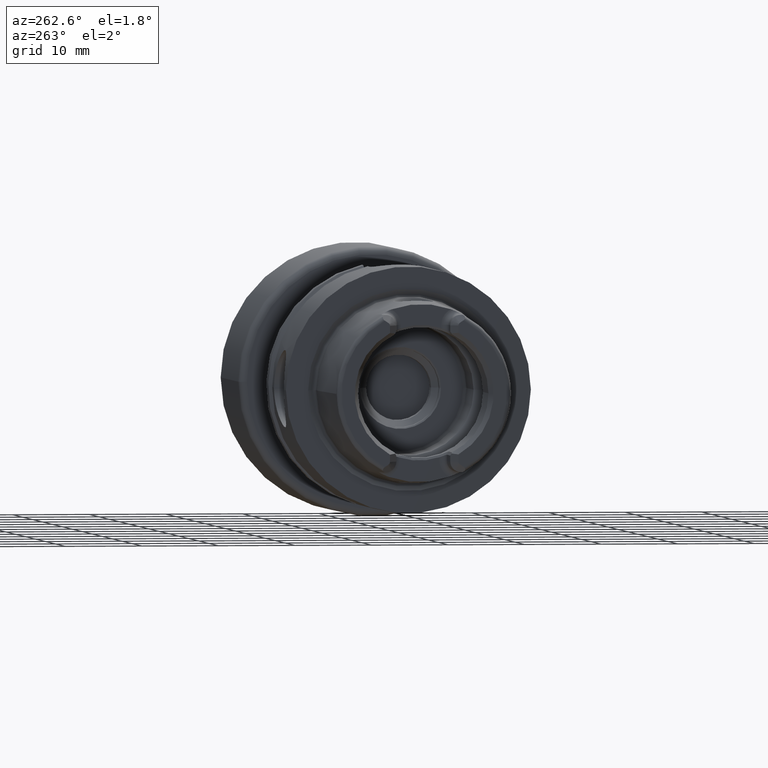
[diagram: clean part render]
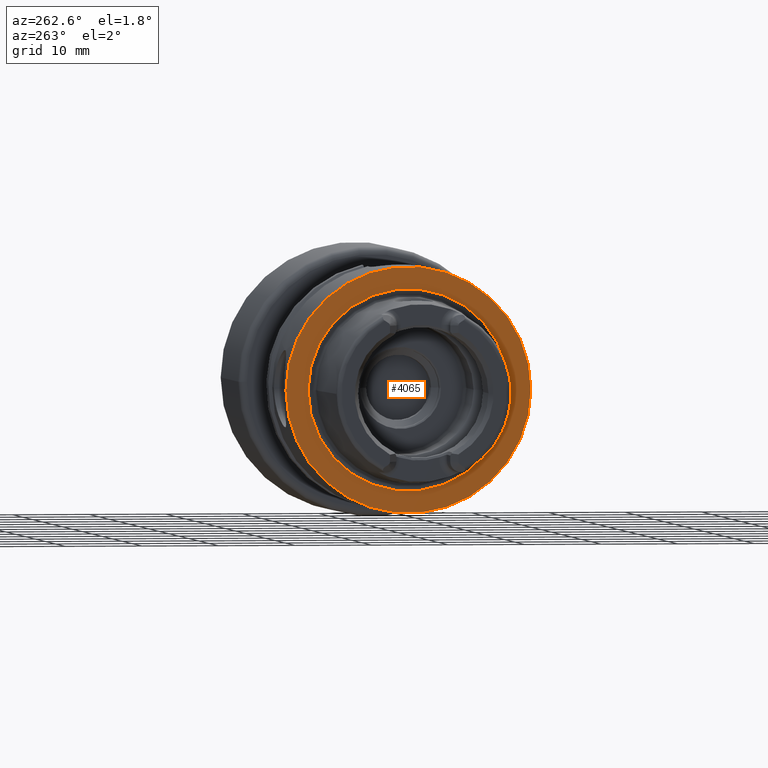
[diagram: same view with one face highlighted and labeled with its STEP entity id]
A machine part, auxiliary view. The second image highlights one B-rep face of the part: STEP entity #4065.
In plain terms, the highlighted planar face has unit normal (1, 0, 0).
Its self-contained STEP definition (entity closure, byte-faithful):
#652=CARTESIAN_POINT('',(0.E0,0.E0,0.E0));
#653=DIRECTION('',(1.E0,0.E0,0.E0));
#654=DIRECTION('',(0.E0,1.E0,0.E0));
#655=AXIS2_PLACEMENT_3D('',#652,#653,#654);
#657=CARTESIAN_POINT('',(0.E0,0.E0,0.E0));
#658=DIRECTION('',(-1.E0,0.E0,0.E0));
#659=DIRECTION('',(0.E0,1.E0,0.E0));
#660=AXIS2_PLACEMENT_3D('',#657,#658,#659);
#662=CARTESIAN_POINT('',(0.E0,0.E0,0.E0));
#663=DIRECTION('',(-1.E0,0.E0,0.E0));
#664=DIRECTION('',(0.E0,-1.E0,0.E0));
#665=AXIS2_PLACEMENT_3D('',#662,#663,#664);
#667=CARTESIAN_POINT('',(0.E0,0.E0,0.E0));
#668=DIRECTION('',(-1.E0,0.E0,0.E0));
#669=DIRECTION('',(0.E0,1.E0,0.E0));
#670=AXIS2_PLACEMENT_3D('',#667,#668,#669);
#2879=CARTESIAN_POINT('',(0.E0,-1.311372602740E1,0.E0));
#2880=VERTEX_POINT('',#2879);
#2881=CARTESIAN_POINT('',(0.E0,1.311372602740E1,0.E0));
#2882=VERTEX_POINT('',#2881);
#3208=CARTESIAN_POINT('',(0.E0,1.6E1,0.E0));
#3209=CARTESIAN_POINT('',(0.E0,-1.6E1,0.E0));
#3210=VERTEX_POINT('',#3208);
#3211=VERTEX_POINT('',#3209);
#4050=CARTESIAN_POINT('',(0.E0,0.E0,0.E0));
#4051=DIRECTION('',(1.E0,0.E0,0.E0));
#4052=DIRECTION('',(0.E0,-1.E0,0.E0));
#4053=AXIS2_PLACEMENT_3D('',#4050,#4051,#4052);
#4054=PLANE('',#4053);
#4056=ORIENTED_EDGE('',*,*,#4055,.T.);
#4058=ORIENTED_EDGE('',*,*,#4057,.F.);
#4059=EDGE_LOOP('',(#4056,#4058));
#4060=FACE_OUTER_BOUND('',#4059,.F.);
#4061=ORIENTED_EDGE('',*,*,#4045,.T.);
#4062=ORIENTED_EDGE('',*,*,#4029,.T.);
#4063=EDGE_LOOP('',(#4061,#4062));
#4064=FACE_BOUND('',#4063,.F.);
#4065=ADVANCED_FACE('',(#4060,#4064),#4054,.F.);
#656=CIRCLE('',#655,1.6E1);
#661=CIRCLE('',#660,1.6E1);
#666=CIRCLE('',#665,1.311372602740E1);
#671=CIRCLE('',#670,1.311372602740E1);
#4029=EDGE_CURVE('',#2882,#2880,#671,.T.);
#4045=EDGE_CURVE('',#2880,#2882,#666,.T.);
#4055=EDGE_CURVE('',#3210,#3211,#656,.T.);
#4057=EDGE_CURVE('',#3210,#3211,#661,.T.);